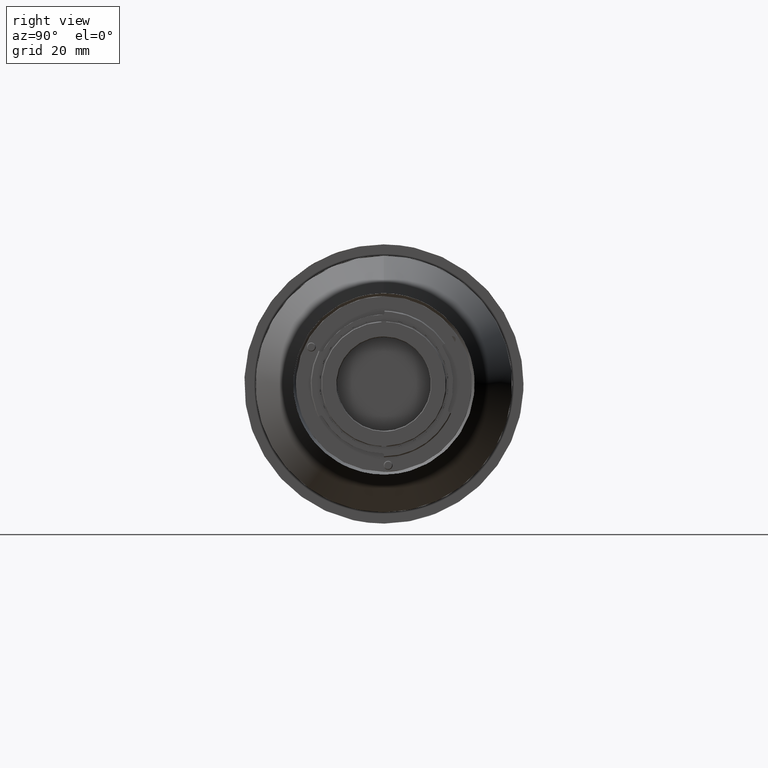
[diagram: clean part render]
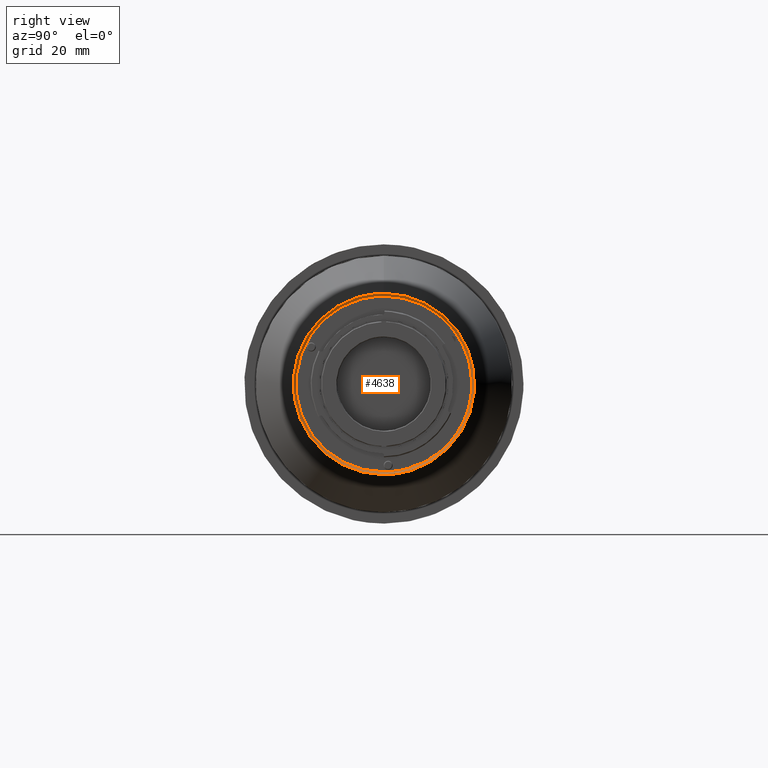
[diagram: same view with one face highlighted and labeled with its STEP entity id]
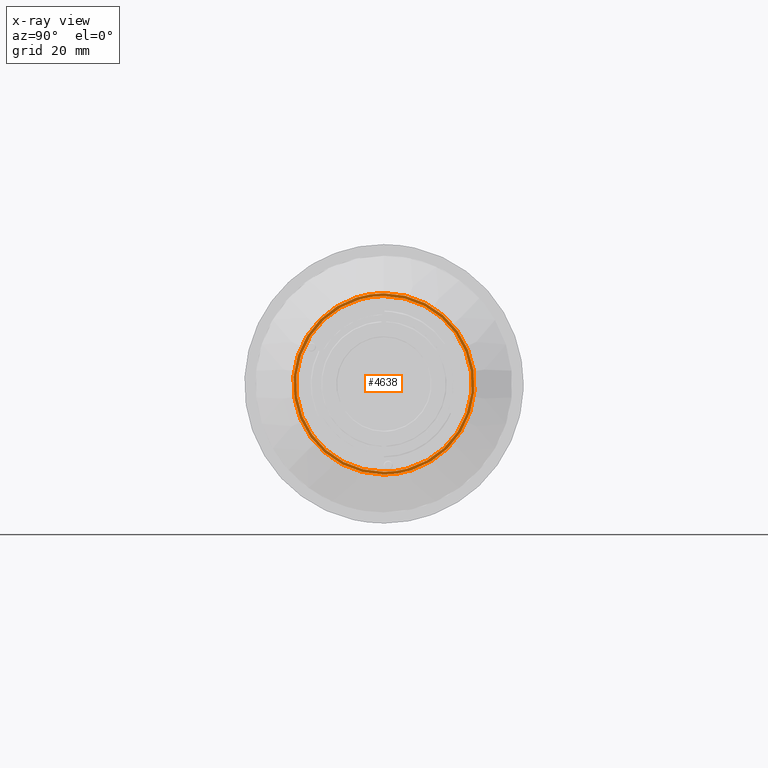
[diagram: x-ray of the same camera — body ghosted, the highlighted face saturated]
A machine part, right view. The second image highlights one B-rep face of the part: STEP entity #4638.
The next image is the same camera in x-ray: the body ghosted, the highlighted face saturated — about 0% of this face is hidden behind the body in this view.
In plain terms, the highlighted planar face has unit normal (1, 0, 0).
Its self-contained STEP definition (entity closure, byte-faithful):
#28 = CARTESIAN_POINT ( 'NONE',  ( 157.6815870460000326, 20.72193353163686069, -145.9424875864479532 ) ) ;
#29 = CARTESIAN_POINT ( 'NONE',  ( 157.6815870460000326, -7.136061110232900795, -190.7305995350785395 ) ) ;
#38 = B_SPLINE_CURVE_WITH_KNOTS ( 'NONE', 3,
 ( #8973, #6005, #4736, #8270, #4032, #6811, #6151, #6724, #5252, #8875, #7472, #359, #1008, #5391, #5346, #8221, #2516, #1762, #1101, #4640, #7514, #1051, #3937, #3984, #7596, #7690, #2594, #6841, #1891, #6890, #6942, #7643, #390, #6990 ),
 .UNSPECIFIED., .F., .F.,
 ( 4, 2, 2, 2, 2, 2, 2, 2, 2, 2, 2, 2, 2, 2, 2, 2, 4 ),
 ( 0.000000000000000000, 0.06250000000000004163, 0.1250000000000000833, 0.1875000000000001110, 0.2500000000000001110, 0.3125000000000001110, 0.3750000000000000555, 0.4375000000000000555, 0.5000000000000000000, 0.5625000000000000000, 0.6250000000000001110, 0.6875000000000001110, 0.7500000000000001110, 0.8125000000000002220, 0.8750000000000001110, 0.9375000000000001110, 1.000000000000000000 ),
 .UNSPECIFIED. ) ;
#46 = B_SPLINE_CURVE_WITH_KNOTS ( 'NONE', 3,
 ( #1822, #5020, #5605, #6355, #7898, #2896, #8609, #2147, #7194, #3472, #9218, #7805, #28, #1442, #1307, #4320, #2055, #2763, #1349, #6397, #733, #8564, #3608, #5648, #688, #6488, #5781, #7766, #7020, #2807, #4931, #3519, #8652, #8518, #4230, #7103, #2193, #5066, #5736 ),
 .UNSPECIFIED., .F., .F.,
 ( 4, 1, 2, 2, 2, 2, 2, 2, 2, 2, 2, 2, 2, 2, 2, 2, 2, 2, 2, 4 ),
 ( -1.000000000000000000, -0.9687500000000002220, -0.9531250000000003331, -0.9375000000000004441, -0.8750000000000004441, -0.8125000000000003331, -0.7500000000000002220, -0.6875000000000002220, -0.6250000000000002220, -0.5625000000000001110, -0.5000000000000001110, -0.4375000000000001110, -0.3750000000000001110, -0.3125000000000001110, -0.2500000000000001110, -0.1875000000000001110, -0.1250000000000001110, -0.09375000000000011102, -0.06250000000000011102, -0.000000000000000000 ),
 .UNSPECIFIED. ) ;
#354 = CARTESIAN_POINT ( 'NONE',  ( 157.6815870460000610, -26.95189274976140226, -173.2564807824388424 ) ) ;
#359 = CARTESIAN_POINT ( 'NONE',  ( 157.6815870460000326, 24.64992168510899262, -149.8840455754425136 ) ) ;
#390 = CARTESIAN_POINT ( 'NONE',  ( 157.6815870460000042, 1.864585440726514109, -192.5114151910000544 ) ) ;
#400 = CARTESIAN_POINT ( 'NONE',  ( 157.6815870460000610, -25.52440402328420177, -151.5200869559561170 ) ) ;
#558 = CARTESIAN_POINT ( 'NONE',  ( 157.6815870460000326, -23.86844629533822726, -177.8885464450425218 ) ) ;
#601 = CARTESIAN_POINT ( 'NONE',  ( 157.6815870460000326, -0.9002606805085660024, -191.6118850167689232 ) ) ;
#644 = CARTESIAN_POINT ( 'NONE',  ( 157.6815870460000326, -3.585040552698139482, -191.3808293544720414 ) ) ;
#688 = CARTESIAN_POINT ( 'NONE',  ( 157.6815870460000610, 24.71585869967625726, -176.3031384883180976 ) ) ;
#732 = AXIS2_PLACEMENT_3D ( 'NONE', #2289, #6633, #3763 ) ;
#733 = CARTESIAN_POINT ( 'NONE',  ( 157.6815870460000610, 27.50002067227774916, -165.9167812436817258 ) ) ;
#755 = CARTESIAN_POINT ( 'NONE',  ( 157.6815870460000326, 1.738998454769219865E-15, -135.7114151910000146 ) ) ;
#869 = CARTESIAN_POINT ( 'NONE',  ( 157.6815870460000610, -7.123683587754574553, -137.5347070527087112 ) ) ;
#905 = CARTESIAN_POINT ( 'NONE',  ( 157.6815870460000326, -7.369825193481312375, -191.6018212280727937 ) ) ;
#952 = CARTESIAN_POINT ( 'NONE',  ( 157.6815870460000326, -18.76302818674561124, -185.5120986132668293 ) ) ;
#964 = CARTESIAN_POINT ( 'NONE',  ( 157.6815870460000326, 1.734723475976804925E-15, -136.6114151901130072 ) ) ;
#1008 = CARTESIAN_POINT ( 'NONE',  ( 157.6815870460000610, 25.52445497497270921, -151.5200297710760822 ) ) ;
#1051 = CARTESIAN_POINT ( 'NONE',  ( 157.6815870460000326, 25.52438823297176995, -176.7027729650032484 ) ) ;
#1095 = CARTESIAN_POINT ( 'NONE',  ( 157.6815870460000326, -17.32901962002605956, -141.5338628973870243 ) ) ;
#1101 = CARTESIAN_POINT ( 'NONE',  ( 157.6815870460000326, 28.21820761404530842, -167.8226882357183740 ) ) ;
#1260 = CARTESIAN_POINT ( 'NONE',  ( 157.6815870460000326, -16.77934051855880426, -185.9737734313191595 ) ) ;
#1307 = CARTESIAN_POINT ( 'NONE',  ( 157.6815870460000326, 23.86844629538804696, -150.3342839360320227 ) ) ;
#1349 = CARTESIAN_POINT ( 'NONE',  ( 157.6815870460000895, 27.32380667236432359, -160.5170242890999646 ) ) ;
#1350 = CARTESIAN_POINT ( 'NONE',  ( 157.6815870460000326, -20.72186444768237124, -145.9425133337370255 ) ) ;
#1442 = CARTESIAN_POINT ( 'NONE',  ( 157.6815870460000042, 21.86239156858974653, -147.3322616605378528 ) ) ;
#1443 = CARTESIAN_POINT ( 'NONE',  ( 157.6815870460000326, -2.246079652889668044, -191.5461711441804482 ) ) ;
#1613 = CARTESIAN_POINT ( 'NONE',  ( 157.6815870460000326, -1.864938838628785289, -192.5114151910000260 ) ) ;
#1622 = CARTESIAN_POINT ( 'NONE',  ( 157.6815870460000042, -12.19126626542781544, -139.3954476947098442 ) ) ;
#1659 = CARTESIAN_POINT ( 'NONE',  ( 157.6815870460000610, -12.59132823504770116, -189.6358192142772623 ) ) ;
#1670 = CARTESIAN_POINT ( 'NONE',  ( 157.6815870460000326, -6.252834577765948865, -137.3165808933737537 ) ) ;
#1761 = ORIENTED_EDGE ( 'NONE', *, *, #1907, .T. ) ;
#1762 = CARTESIAN_POINT ( 'NONE',  ( 157.6815870460000610, 28.39996387939583755, -165.9765524270138428 ) ) ;
#1802 = CARTESIAN_POINT ( 'NONE',  ( 157.6815870460000326, -3.711305096421781524, -192.3296130809527256 ) ) ;
#1822 = CARTESIAN_POINT ( 'NONE',  ( 157.6815870460000326, 1.734723475976804925E-15, -136.6114151901130072 ) ) ;
#1891 = CARTESIAN_POINT ( 'NONE',  ( 157.6815870460000042, 12.59138541977956649, -189.6358701659766837 ) ) ;
#1907 = EDGE_CURVE ( 'NONE', #5779, #8613, #8759, .T. ) ;
#2033 = B_SPLINE_CURVE_WITH_KNOTS ( 'NONE', 3,
 ( #3473, #601, #1443, #644, #6356, #3565, #29, #5067, #2852, #5737, #1260, #7021, #2764, #4141, #558, #3430, #6312, #9174, #9267, #8471, #2719, #5606, #9219, #8519, #2056, #7806, #6398, #1350, #4231, #2808, #5690, #1622, #8787, #8084, #869, #1670, #3129, #8881, #964 ),
 .UNSPECIFIED., .F., .F.,
 ( 4, 1, 2, 2, 2, 2, 2, 2, 2, 2, 2, 2, 2, 2, 2, 2, 2, 2, 2, 4 ),
 ( -1.000000000000000000, -0.9687500000000001110, -0.9531250000000002220, -0.9375000000000002220, -0.8750000000000002220, -0.8125000000000002220, -0.7500000000000002220, -0.6875000000000002220, -0.6250000000000002220, -0.5625000000000003331, -0.5000000000000003331, -0.4375000000000003331, -0.3750000000000004441, -0.3125000000000004441, -0.2500000000000004441, -0.1875000000000004441, -0.1250000000000005551, -0.09375000000000044409, -0.06250000000000022204, -0.000000000000000000 ),
 .UNSPECIFIED. ) ;
#2055 = CARTESIAN_POINT ( 'NONE',  ( 157.6815870460000610, 26.09753947152249154, -155.2555838475633152 ) ) ;
#2056 = CARTESIAN_POINT ( 'NONE',  ( 157.6815870460000895, -24.71585869977587890, -151.9196918928766422 ) ) ;
#2147 = CARTESIAN_POINT ( 'NONE',  ( 157.6815870460000610, 8.855856960404304701, -138.0139086669443884 ) ) ;
#2193 = CARTESIAN_POINT ( 'NONE',  ( 157.6815870460001179, 3.589231034229932504, -191.4361732173856865 ) ) ;
#2289 = CARTESIAN_POINT ( 'NONE',  ( 157.6815870460000326, 28.74078401999999954, -164.1114151904999972 ) ) ;
#2370 = CARTESIAN_POINT ( 'NONE',  ( 157.6815870460000610, -24.64996984964993487, -149.8839935390122662 ) ) ;
#2512 = CARTESIAN_POINT ( 'NONE',  ( 157.6815870460000326, -14.22743564109763170, -188.7613756930778663 ) ) ;
#2516 = CARTESIAN_POINT ( 'NONE',  ( 157.6815870460000895, 28.40003612060415961, -162.2462779546528679 ) ) ;
#2557 = CARTESIAN_POINT ( 'NONE',  ( 157.6815870460000610, -9.145033538587478361, -137.1595127194080135 ) ) ;
#2594 = CARTESIAN_POINT ( 'NONE',  ( 157.6815870460000610, 17.32901962012537567, -186.6889674845586171 ) ) ;
#2655 = EDGE_CURVE ( 'NONE', #8220, #3332, #2033, .T. ) ;
#2719 = CARTESIAN_POINT ( 'NONE',  ( 157.6815870460000326, -27.50002067227773850, -162.3060491372098966 ) ) ;
#2763 = CARTESIAN_POINT ( 'NONE',  ( 157.6815870460000042, 26.61931052360947092, -156.9758941597500552 ) ) ;
#2764 = CARTESIAN_POINT ( 'NONE',  ( 157.6815870460000326, -20.72193353153344120, -182.2803427947068826 ) ) ;
#2807 = CARTESIAN_POINT ( 'NONE',  ( 157.6815870460000326, 16.77911002212383451, -185.9738435965928147 ) ) ;
#2808 = CARTESIAN_POINT ( 'NONE',  ( 157.6815870460000326, -16.77911002179594036, -142.2489867842280660 ) ) ;
#2852 = CARTESIAN_POINT ( 'NONE',  ( 157.6815870460000610, -12.19182257739053377, -188.8272254397391521 ) ) ;
#2896 = CARTESIAN_POINT ( 'NONE',  ( 157.6815870460000326, 4.922219342439851708, -137.0518736961714978 ) ) ;
#3121 = CARTESIAN_POINT ( 'NONE',  ( 157.6815870460000326, -28.40003283632047015, -165.9765190941345168 ) ) ;
#3129 = CARTESIAN_POINT ( 'NONE',  ( 157.6815870460000326, -3.589231034460304226, -136.7866571636155584 ) ) ;
#3170 = CARTESIAN_POINT ( 'NONE',  ( 157.6815870460000326, -21.40070931444023827, -145.3484082517885554 ) ) ;
#3221 = CARTESIAN_POINT ( 'NONE',  ( 157.6815870460000326, -25.52446469672019802, -176.7027685582831396 ) ) ;
#3268 = CARTESIAN_POINT ( 'NONE',  ( 157.6815870460000326, -14.22736961559124858, -139.4614935058978062 ) ) ;
#3332 = VERTEX_POINT ( 'NONE', #8632 ) ;
#3430 = CARTESIAN_POINT ( 'NONE',  ( 157.6815870460000326, -24.71579722644174026, -176.3031061898401219 ) ) ;
#3472 = CARTESIAN_POINT ( 'NONE',  ( 157.6815870459999758, 13.77708301312223504, -140.2430112664243609 ) ) ;
#3473 = CARTESIAN_POINT ( 'NONE',  ( 157.6815870460000326, 1.734723475976804925E-15, -191.6114151908859924 ) ) ;
#3519 = CARTESIAN_POINT ( 'NONE',  ( 157.6815870460000042, 12.19126626583599915, -188.8273826861643556 ) ) ;
#3565 = CARTESIAN_POINT ( 'NONE',  ( 157.6815870460000610, -4.922219342438526546, -191.1709566848291502 ) ) ;
#3608 = CARTESIAN_POINT ( 'NONE',  ( 157.6815870460000610, 26.61937198835223128, -171.2469812285382886 ) ) ;
#3763 = DIRECTION ( 'NONE',  ( 0.000000000000000000, 1.000000000000000000, 0.000000000000000000 ) ) ;
#3838 = EDGE_LOOP ( 'NONE', ( #6228, #6504 ) ) ;
#3841 = CARTESIAN_POINT ( 'NONE',  ( 157.6815870460000326, -9.145090722750493839, -191.0633686145870342 ) ) ;
#3937 = CARTESIAN_POINT ( 'NONE',  ( 157.6815870460000326, 24.64998175168642902, -178.3388249413311826 ) ) ;
#3984 = CARTESIAN_POINT ( 'NONE',  ( 157.6815870460000326, 22.57749222735277428, -181.4403946758012012 ) ) ;
#4032 = CARTESIAN_POINT ( 'NONE',  ( 157.6815870460000326, 9.145061184240855567, -137.1594459772974517 ) ) ;
#4141 = CARTESIAN_POINT ( 'NONE',  ( 157.6815870460000895, -21.86239156863957689, -180.8905687203875914 ) ) ;
#4230 = CARTESIAN_POINT ( 'NONE',  ( 157.6815870460000326, 7.123683587448450538, -190.6881233283856716 ) ) ;
#4231 = CARTESIAN_POINT ( 'NONE',  ( 157.6815870460000326, -18.16894643429863621, -143.3894921587169051 ) ) ;
#4320 = CARTESIAN_POINT ( 'NONE',  ( 157.6815870460000042, 24.71579722645271460, -151.9197241911406593 ) ) ;
#4635 = CARTESIAN_POINT ( 'NONE',  ( 157.6815870460000326, 2.222886118446129997E-10, -192.5114151905640085 ) ) ;
#4638 = ADVANCED_FACE ( 'NONE', ( #7872, #7437 ), #8796, .F. ) ;
#4640 = CARTESIAN_POINT ( 'NONE',  ( 157.6815870460000610, 27.49039631293133823, -171.4812724364300323 ) ) ;
#4709 = ORIENTED_EDGE ( 'NONE', *, *, #4877, .T. ) ;
#4736 = CARTESIAN_POINT ( 'NONE',  ( 157.6815870460000042, 3.711273044835368573, -135.8932075769392327 ) ) ;
#4877 = EDGE_CURVE ( 'NONE', #8613, #5779, #38, .T. ) ;
#4931 = CARTESIAN_POINT ( 'NONE',  ( 157.6815870460000326, 13.77721793986136589, -187.9798131030493096 ) ) ;
#5020 = CARTESIAN_POINT ( 'NONE',  ( 157.6815870460000895, 0.9002606805038166904, -136.6109453642299343 ) ) ;
#5066 = CARTESIAN_POINT ( 'NONE',  ( 157.6815870460000610, 1.800908790897470135, -191.6123480373879602 ) ) ;
#5067 = CARTESIAN_POINT ( 'NONE',  ( 157.6815870460000610, -8.855856960599274075, -190.2089217139750303 ) ) ;
#5245 = CARTESIAN_POINT ( 'NONE',  ( 157.6815870460000610, -7.369689801681428065, -136.6209119185872396 ) ) ;
#5252 = CARTESIAN_POINT ( 'NONE',  ( 157.6815870460000610, 18.76300693911665718, -142.7107058764414660 ) ) ;
#5346 = CARTESIAN_POINT ( 'NONE',  ( 157.6815870460000326, 27.49046716596987494, -156.7415438516108566 ) ) ;
#5385 = CARTESIAN_POINT ( 'NONE',  ( 157.6815870460000326, -24.64990589686853539, -178.3388143468954468 ) ) ;
#5391 = CARTESIAN_POINT ( 'NONE',  ( 157.6815870460000326, 26.95190247157270846, -154.9663816523558069 ) ) ;
#5605 = CARTESIAN_POINT ( 'NONE',  ( 157.6815870460000042, 2.246079652881350253, -136.6766592368185513 ) ) ;
#5606 = CARTESIAN_POINT ( 'NONE',  ( 157.6815870460000326, -27.32373167364550426, -160.5169968144004145 ) ) ;
#5648 = CARTESIAN_POINT ( 'NONE',  ( 157.6815870460000326, 26.09744979829894262, -172.9672814829779099 ) ) ;
#5690 = CARTESIAN_POINT ( 'NONE',  ( 157.6815870460000326, -13.77721794018926893, -140.2430172781298836 ) ) ;
#5736 = CARTESIAN_POINT ( 'NONE',  ( 157.6815870460000326, 1.734723475976804925E-15, -191.6114151908859924 ) ) ;
#5737 = CARTESIAN_POINT ( 'NONE',  ( 157.6815870460000610, -13.77708301342640418, -187.9798191143228507 ) ) ;
#5779 = VERTEX_POINT ( 'NONE', #6983 ) ;
#5781 = CARTESIAN_POINT ( 'NONE',  ( 157.6815870460000610, 21.86236866742558504, -180.8907309797968708 ) ) ;
#5957 = CARTESIAN_POINT ( 'NONE',  ( 157.6815870460000326, -28.21813347905513680, -167.8227074759018933 ) ) ;
#5998 = CARTESIAN_POINT ( 'NONE',  ( 157.6815870460000042, -3.711440488875569432, -135.8933145365174653 ) ) ;
#6005 = CARTESIAN_POINT ( 'NONE',  ( 157.6815870460000326, 1.864955664101499933, -135.7114151909999293 ) ) ;
#6098 = CARTESIAN_POINT ( 'NONE',  ( 157.6815870460000895, -28.21819788988361211, -160.4001100942570872 ) ) ;
#6147 = CARTESIAN_POINT ( 'NONE',  ( 157.6815870460000895, -27.49047044777527304, -171.4812531969820100 ) ) ;
#6151 = CARTESIAN_POINT ( 'NONE',  ( 157.6815870460000326, 14.22740975057343960, -139.4614334394792650 ) ) ;
#6228 = ORIENTED_EDGE ( 'NONE', *, *, #2655, .F. ) ;
#6312 = CARTESIAN_POINT ( 'NONE',  ( 157.6815870460000610, -26.09753947153347298, -172.9672465334558922 ) ) ;
#6355 = CARTESIAN_POINT ( 'NONE',  ( 157.6815870460000895, 3.585040552691610483, -136.8420010265273277 ) ) ;
#6356 = CARTESIAN_POINT ( 'NONE',  ( 157.6815870460000326, -4.476157136443208451, -191.2484619575288605 ) ) ;
#6397 = CARTESIAN_POINT ( 'NONE',  ( 157.6815870460000326, 27.49994871969544974, -162.3060847753182259 ) ) ;
#6398 = CARTESIAN_POINT ( 'NONE',  ( 157.6815870460000610, -21.86236866769010234, -147.3320994015533074 ) ) ;
#6488 = CARTESIAN_POINT ( 'NONE',  ( 157.6815870460000326, 23.86843031855222108, -177.8884452216330772 ) ) ;
#6504 = ORIENTED_EDGE ( 'NONE', *, *, #7848, .F. ) ;
#6633 = DIRECTION ( 'NONE',  ( 1.000000000000000000, 0.000000000000000000, 0.000000000000000000 ) ) ;
#6693 = EDGE_LOOP ( 'NONE', ( #4709, #1761 ) ) ;
#6718 = CARTESIAN_POINT ( 'NONE',  ( 157.6815870460000326, -22.57750412925046746, -146.7824476076475833 ) ) ;
#6724 = CARTESIAN_POINT ( 'NONE',  ( 157.6815870460000042, 17.32897948483599748, -141.5339229636667255 ) ) ;
#6811 = CARTESIAN_POINT ( 'NONE',  ( 157.6815870460000610, 12.59135777401925438, -138.5870269580296679 ) ) ;
#6841 = CARTESIAN_POINT ( 'NONE',  ( 157.6815870460000042, 14.22736961583843751, -188.7613368759250818 ) ) ;
#6853 = CARTESIAN_POINT ( 'NONE',  ( 157.6815870460001179, -28.39996716367954477, -162.2463112881988536 ) ) ;
#6890 = CARTESIAN_POINT ( 'NONE',  ( 157.6815870460000042, 9.145033539096433017, -191.0633176624411078 ) ) ;
#6942 = CARTESIAN_POINT ( 'NONE',  ( 157.6815870460000326, 7.369689801992183931, -191.6019184633179577 ) ) ;
#6983 = CARTESIAN_POINT ( 'NONE',  ( 157.6815870460000326, 2.222886118446129997E-10, -192.5114151905640085 ) ) ;
#6990 = CARTESIAN_POINT ( 'NONE',  ( 157.6815870460000326, 2.222886118446129997E-10, -192.5114151905640085 ) ) ;
#7020 = CARTESIAN_POINT ( 'NONE',  ( 157.6815870460000610, 18.16894643392003417, -184.8333382225760602 ) ) ;
#7021 = CARTESIAN_POINT ( 'NONE',  ( 157.6815870460000326, -18.16894396244757814, -184.8332448488390582 ) ) ;
#7103 = CARTESIAN_POINT ( 'NONE',  ( 157.6815870460000610, 6.252834577881136724, -190.9062494876257006 ) ) ;
#7194 = CARTESIAN_POINT ( 'NONE',  ( 157.6815870460000326, 12.19182257758549603, -139.3956049413416736 ) ) ;
#7437 = FACE_BOUND ( 'NONE', #3838, .T. ) ;
#7467 = CARTESIAN_POINT ( 'NONE',  ( 157.6815870460000326, -17.32895359396536250, -186.6889286680076623 ) ) ;
#7472 = CARTESIAN_POINT ( 'NONE',  ( 157.6815870460000610, 22.57755229355982962, -146.7823955708708752 ) ) ;
#7511 = CARTESIAN_POINT ( 'NONE',  ( 157.6815870460000326, -21.40063698429679917, -182.8743969404826828 ) ) ;
#7514 = CARTESIAN_POINT ( 'NONE',  ( 157.6815870460000610, 26.95196921382876809, -173.2564763749489032 ) ) ;
#7556 = CARTESIAN_POINT ( 'NONE',  ( 157.6815870460000042, -18.76295585707357105, -142.7107569589333309 ) ) ;
#7596 = CARTESIAN_POINT ( 'NONE',  ( 157.6815870460000326, 21.40070931474334870, -182.8744221299317871 ) ) ;
#7643 = CARTESIAN_POINT ( 'NONE',  ( 157.6815870460000042, 3.711440489136919485, -192.3295158454636180 ) ) ;
#7690 = CARTESIAN_POINT ( 'NONE',  ( 157.6815870460000610, 18.76295585700609436, -185.5120734231105928 ) ) ;
#7766 = CARTESIAN_POINT ( 'NONE',  ( 157.6815870460000326, 20.72186444806096972, -182.2803170469699126 ) ) ;
#7805 = CARTESIAN_POINT ( 'NONE',  ( 157.6815870460000042, 18.16894396234413023, -143.3895855320060662 ) ) ;
#7806 = CARTESIAN_POINT ( 'NONE',  ( 157.6815870460000326, -23.86843031828770378, -150.3343851590166480 ) ) ;
#7848 = EDGE_CURVE ( 'NONE', #3332, #8220, #46, .T. ) ;
#7872 = FACE_OUTER_BOUND ( 'NONE', #6693, .T. ) ;
#7898 = CARTESIAN_POINT ( 'NONE',  ( 157.6815870460000326, 4.476157136439051776, -136.9743684234708496 ) ) ;
#8084 = CARTESIAN_POINT ( 'NONE',  ( 157.6815870460000610, -8.843293965087072550, -138.0563066617160359 ) ) ;
#8121 = CARTESIAN_POINT ( 'NONE',  ( 157.6815870460000326, -1.864585440449397558, -135.7114151909999578 ) ) ;
#8218 = CARTESIAN_POINT ( 'NONE',  ( 157.6815870460000326, -26.95195342345260414, -154.9663244679377669 ) ) ;
#8220 = VERTEX_POINT ( 'NONE', #8685 ) ;
#8221 = CARTESIAN_POINT ( 'NONE',  ( 157.6815870460000610, 28.21813676087671041, -160.4001562395870337 ) ) ;
#8263 = CARTESIAN_POINT ( 'NONE',  ( 157.6815870460000895, -22.57756808166147167, -181.4404052709991504 ) ) ;
#8270 = CARTESIAN_POINT ( 'NONE',  ( 157.6815870460000326, 7.369857245639833465, -136.6210188781491297 ) ) ;
#8471 = CARTESIAN_POINT ( 'NONE',  ( 157.6815870460000610, -27.49994871969547106, -165.9167456057901120 ) ) ;
#8518 = CARTESIAN_POINT ( 'NONE',  ( 157.6815870460000610, 8.843293964780947647, -190.1665237193782900 ) ) ;
#8519 = CARTESIAN_POINT ( 'NONE',  ( 157.6815870460000326, -26.09744979819933519, -155.2555488978273388 ) ) ;
#8564 = CARTESIAN_POINT ( 'NONE',  ( 157.6815870460000326, 27.32373167362156963, -167.7058335666117159 ) ) ;
#8609 = CARTESIAN_POINT ( 'NONE',  ( 157.6815870459999758, 7.136061110227595705, -137.4922308459192379 ) ) ;
#8613 = VERTEX_POINT ( 'NONE', #755 ) ;
#8632 = CARTESIAN_POINT ( 'NONE',  ( 157.6815870460000326, 1.734723475976804925E-15, -136.6114151901130072 ) ) ;
#8652 = CARTESIAN_POINT ( 'NONE',  ( 157.6815870460000610, 9.690063660074349272, -189.8634465127032627 ) ) ;
#8685 = CARTESIAN_POINT ( 'NONE',  ( 157.6815870460000326, 1.734723475976804925E-15, -191.6114151908859924 ) ) ;
#8759 = B_SPLINE_CURVE_WITH_KNOTS ( 'NONE', 3,
 ( #4635, #1613, #1802, #905, #3841, #1659, #2512, #7467, #952, #7511, #8263, #5385, #3221, #354, #6147, #5957, #3121, #6853, #6098, #8830, #8218, #400, #2370, #6718, #3170, #7556, #1095, #3268, #9013, #2557, #5245, #5998, #8121, #8919 ),
 .UNSPECIFIED., .F., .F.,
 ( 4, 2, 2, 2, 2, 2, 2, 2, 2, 2, 2, 2, 2, 2, 2, 2, 4 ),
 ( 0.000000000000000000, 0.06250000000000002776, 0.1250000000000000555, 0.1875000000000000833, 0.2500000000000000555, 0.3125000000000000000, 0.3750000000000000000, 0.4374999999999999445, 0.4999999999999999445, 0.5624999999999998890, 0.6249999999999998890, 0.6875000000000000000, 0.7500000000000000000, 0.8125000000000000000, 0.8750000000000000000, 0.9375000000000001110, 1.000000000000000000 ),
 .UNSPECIFIED. ) ;
#8787 = CARTESIAN_POINT ( 'NONE',  ( 157.6815870460000895, -9.690063660278429580, -138.3593838683595436 ) ) ;
#8796 = PLANE ( 'NONE',  #732 ) ;
#8830 = CARTESIAN_POINT ( 'NONE',  ( 157.6815870460000610, -27.49040603707680575, -156.7415899975130174 ) ) ;
#8875 = CARTESIAN_POINT ( 'NONE',  ( 157.6815870460000042, 21.40065823216136920, -145.3484593340446906 ) ) ;
#8881 = CARTESIAN_POINT ( 'NONE',  ( 157.6815870460000326, -1.800908791127839859, -136.6104823436129152 ) ) ;
#8919 = CARTESIAN_POINT ( 'NONE',  ( 157.6815870460000326, 1.738998454769219865E-15, -135.7114151910000146 ) ) ;
#8973 = CARTESIAN_POINT ( 'NONE',  ( 157.6815870460000326, 1.738998454769219865E-15, -135.7114151910000146 ) ) ;
#9013 = CARTESIAN_POINT ( 'NONE',  ( 157.6815870460000326, -12.59138541982662574, -138.5869602159827707 ) ) ;
#9174 = CARTESIAN_POINT ( 'NONE',  ( 157.6815870460000895, -26.61931052360949224, -171.2469362213243471 ) ) ;
#9218 = CARTESIAN_POINT ( 'NONE',  ( 157.6815870460000326, 16.77934051886295208, -142.2490569499335606 ) ) ;
#9219 = CARTESIAN_POINT ( 'NONE',  ( 157.6815870460000042, -26.61937198832829310, -156.9758491524495696 ) ) ;
#9267 = CARTESIAN_POINT ( 'NONE',  ( 157.6815870460000895, -27.32380667236429517, -167.7058060918257070 ) ) ;